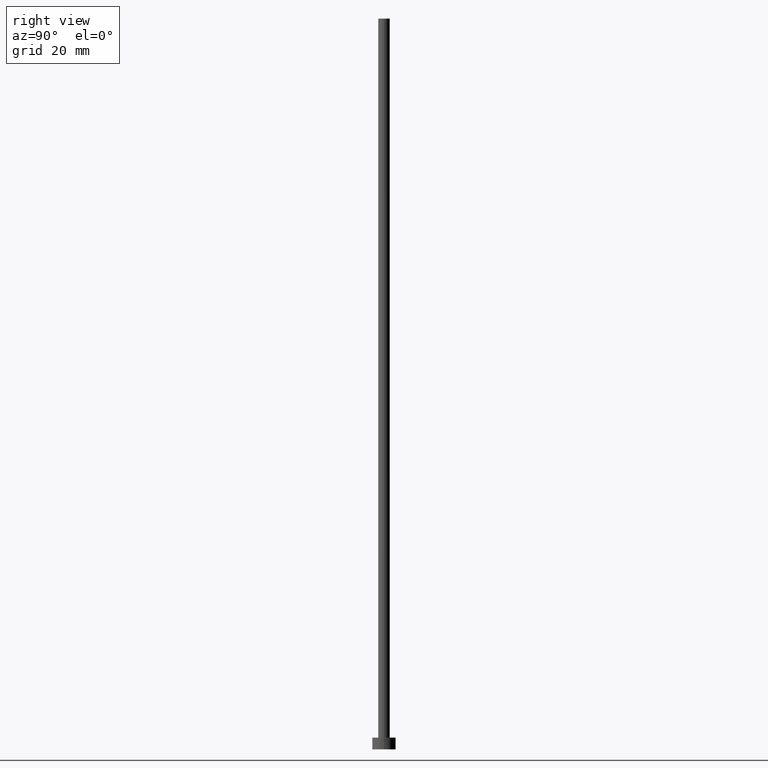
[diagram: clean part render]
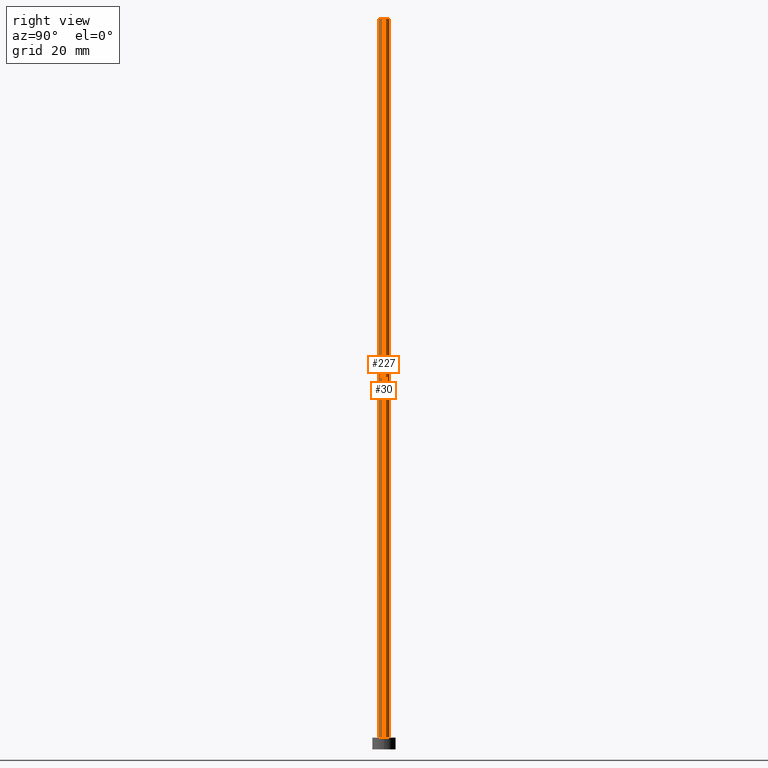
[diagram: same view with one multi-face feature highlighted, each face labeled with its STEP entity id]
A machine part, right view. The highlighted faces form ONE feature: a constant-radius fillet chain: 2 tangent blend faces with common blend radius 1 mm. The faces share edges in the B-rep.
Their STEP definitions:
[1] entity #227 (Cylinder):
#1 = CARTESIAN_POINT ( 'NONE',  ( -1.000000000000000000, 0.000000000000000000, 125.0000000000000000 ) ) ;
#2 = AXIS2_PLACEMENT_3D ( 'NONE', #135, #117, #140 ) ;
#8 = EDGE_CURVE ( 'NONE', #65, #101, #173, .T. ) ;
#15 = DIRECTION ( 'NONE',  ( 0.000000000000000000, 0.000000000000000000, 1.000000000000000000 ) ) ;
#18 = DIRECTION ( 'NONE',  ( 1.000000000000000000, 0.000000000000000000, 0.000000000000000000 ) ) ;
#21 = CARTESIAN_POINT ( 'NONE',  ( 0.000000000000000000, 0.000000000000000000, 2.000000000000000000 ) ) ;
#31 = ORIENTED_EDGE ( 'NONE', *, *, #64, .T. ) ;
#45 = VERTEX_POINT ( 'NONE', #125 ) ;
#49 = DIRECTION ( 'NONE',  ( 1.000000000000000000, 0.000000000000000000, 0.000000000000000000 ) ) ;
#50 = EDGE_CURVE ( 'NONE', #45, #99, #122, .T. ) ;
#51 = CARTESIAN_POINT ( 'NONE',  ( -1.000000000000000000, 0.000000000000000000, 125.0000000000000000 ) ) ;
#54 = CARTESIAN_POINT ( 'NONE',  ( 1.000000000000000000, 1.224646799147353207E-16, 2.000000000000000000 ) ) ;
#64 = EDGE_CURVE ( 'NONE', #65, #45, #189, .T. ) ;
#65 = VERTEX_POINT ( 'NONE', #51 ) ;
#70 = VECTOR ( 'NONE', #206, 1000.000000000000000 ) ;
#92 = EDGE_LOOP ( 'NONE', ( #233, #165, #31, #237 ) ) ;
#97 = CARTESIAN_POINT ( 'NONE',  ( 1.000000000000000000, 1.224646799147353207E-16, 125.0000000000000000 ) ) ;
#99 = VERTEX_POINT ( 'NONE', #54 ) ;
#101 = VERTEX_POINT ( 'NONE', #97 ) ;
#117 = DIRECTION ( 'NONE',  ( -0.000000000000000000, -0.000000000000000000, -1.000000000000000000 ) ) ;
#122 = CIRCLE ( 'NONE', #193, 1.000000000000000000 ) ;
#125 = CARTESIAN_POINT ( 'NONE',  ( -1.000000000000000000, 0.000000000000000000, 2.000000000000000000 ) ) ;
#133 = CARTESIAN_POINT ( 'NONE',  ( 1.000000000000000000, 1.224646799147353207E-16, 125.0000000000000000 ) ) ;
#135 = CARTESIAN_POINT ( 'NONE',  ( 0.000000000000000000, 0.000000000000000000, 125.0000000000000000 ) ) ;
#140 = DIRECTION ( 'NONE',  ( -1.000000000000000000, 0.000000000000000000, 0.000000000000000000 ) ) ;
#153 = LINE ( 'NONE', #133, #70 ) ;
#154 = FACE_OUTER_BOUND ( 'NONE', #92, .T. ) ;
#162 = AXIS2_PLACEMENT_3D ( 'NONE', #198, #15, #18 ) ;
#165 = ORIENTED_EDGE ( 'NONE', *, *, #8, .F. ) ;
#169 = VECTOR ( 'NONE', #220, 1000.000000000000000 ) ;
#173 = CIRCLE ( 'NONE', #162, 1.000000000000000000 ) ;
#189 = LINE ( 'NONE', #1, #169 ) ;
#193 = AXIS2_PLACEMENT_3D ( 'NONE', #21, #218, #49 ) ;
#196 = EDGE_CURVE ( 'NONE', #101, #99, #153, .T. ) ;
#198 = CARTESIAN_POINT ( 'NONE',  ( 0.000000000000000000, 0.000000000000000000, 125.0000000000000000 ) ) ;
#206 = DIRECTION ( 'NONE',  ( -0.000000000000000000, -0.000000000000000000, -1.000000000000000000 ) ) ;
#218 = DIRECTION ( 'NONE',  ( 0.000000000000000000, 0.000000000000000000, 1.000000000000000000 ) ) ;
#220 = DIRECTION ( 'NONE',  ( -0.000000000000000000, -0.000000000000000000, -1.000000000000000000 ) ) ;
#227 = ADVANCED_FACE ( 'NONE', ( #154 ), #229, .T. ) ;
#229 = CYLINDRICAL_SURFACE ( 'NONE', #2, 1.000000000000000000 ) ;
#233 = ORIENTED_EDGE ( 'NONE', *, *, #196, .F. ) ;
#237 = ORIENTED_EDGE ( 'NONE', *, *, #50, .T. ) ;
[2] entity #30 (Cylinder):
#1 = CARTESIAN_POINT ( 'NONE',  ( -1.000000000000000000, 0.000000000000000000, 125.0000000000000000 ) ) ;
#3 = EDGE_LOOP ( 'NONE', ( #14, #59, #87, #12 ) ) ;
#12 = ORIENTED_EDGE ( 'NONE', *, *, #64, .F. ) ;
#14 = ORIENTED_EDGE ( 'NONE', *, *, #126, .F. ) ;
#30 = ADVANCED_FACE ( 'NONE', ( #181 ), #255, .T. ) ;
#39 = CARTESIAN_POINT ( 'NONE',  ( 0.000000000000000000, 0.000000000000000000, 2.000000000000000000 ) ) ;
#43 = DIRECTION ( 'NONE',  ( 1.000000000000000000, 0.000000000000000000, 0.000000000000000000 ) ) ;
#45 = VERTEX_POINT ( 'NONE', #125 ) ;
#47 = CARTESIAN_POINT ( 'NONE',  ( 0.000000000000000000, 0.000000000000000000, 125.0000000000000000 ) ) ;
#51 = CARTESIAN_POINT ( 'NONE',  ( -1.000000000000000000, 0.000000000000000000, 125.0000000000000000 ) ) ;
#54 = CARTESIAN_POINT ( 'NONE',  ( 1.000000000000000000, 1.224646799147353207E-16, 2.000000000000000000 ) ) ;
#55 = DIRECTION ( 'NONE',  ( 0.000000000000000000, 0.000000000000000000, 1.000000000000000000 ) ) ;
#59 = ORIENTED_EDGE ( 'NONE', *, *, #196, .T. ) ;
#63 = CIRCLE ( 'NONE', #215, 1.000000000000000000 ) ;
#64 = EDGE_CURVE ( 'NONE', #65, #45, #189, .T. ) ;
#65 = VERTEX_POINT ( 'NONE', #51 ) ;
#70 = VECTOR ( 'NONE', #206, 1000.000000000000000 ) ;
#73 = DIRECTION ( 'NONE',  ( -1.000000000000000000, 0.000000000000000000, 0.000000000000000000 ) ) ;
#87 = ORIENTED_EDGE ( 'NONE', *, *, #241, .T. ) ;
#97 = CARTESIAN_POINT ( 'NONE',  ( 1.000000000000000000, 1.224646799147353207E-16, 125.0000000000000000 ) ) ;
#99 = VERTEX_POINT ( 'NONE', #54 ) ;
#100 = DIRECTION ( 'NONE',  ( 0.000000000000000000, 0.000000000000000000, 1.000000000000000000 ) ) ;
#101 = VERTEX_POINT ( 'NONE', #97 ) ;
#125 = CARTESIAN_POINT ( 'NONE',  ( -1.000000000000000000, 0.000000000000000000, 2.000000000000000000 ) ) ;
#126 = EDGE_CURVE ( 'NONE', #101, #65, #63, .T. ) ;
#130 = AXIS2_PLACEMENT_3D ( 'NONE', #39, #100, #43 ) ;
#133 = CARTESIAN_POINT ( 'NONE',  ( 1.000000000000000000, 1.224646799147353207E-16, 125.0000000000000000 ) ) ;
#138 = AXIS2_PLACEMENT_3D ( 'NONE', #47, #202, #73 ) ;
#153 = LINE ( 'NONE', #133, #70 ) ;
#169 = VECTOR ( 'NONE', #220, 1000.000000000000000 ) ;
#181 = FACE_OUTER_BOUND ( 'NONE', #3, .T. ) ;
#189 = LINE ( 'NONE', #1, #169 ) ;
#191 = DIRECTION ( 'NONE',  ( 1.000000000000000000, 0.000000000000000000, 0.000000000000000000 ) ) ;
#196 = EDGE_CURVE ( 'NONE', #101, #99, #153, .T. ) ;
#202 = DIRECTION ( 'NONE',  ( -0.000000000000000000, -0.000000000000000000, -1.000000000000000000 ) ) ;
#206 = DIRECTION ( 'NONE',  ( -0.000000000000000000, -0.000000000000000000, -1.000000000000000000 ) ) ;
#207 = CIRCLE ( 'NONE', #130, 1.000000000000000000 ) ;
#215 = AXIS2_PLACEMENT_3D ( 'NONE', #231, #55, #191 ) ;
#220 = DIRECTION ( 'NONE',  ( -0.000000000000000000, -0.000000000000000000, -1.000000000000000000 ) ) ;
#231 = CARTESIAN_POINT ( 'NONE',  ( 0.000000000000000000, 0.000000000000000000, 125.0000000000000000 ) ) ;
#241 = EDGE_CURVE ( 'NONE', #99, #45, #207, .T. ) ;
#255 = CYLINDRICAL_SURFACE ( 'NONE', #138, 1.000000000000000000 ) ;